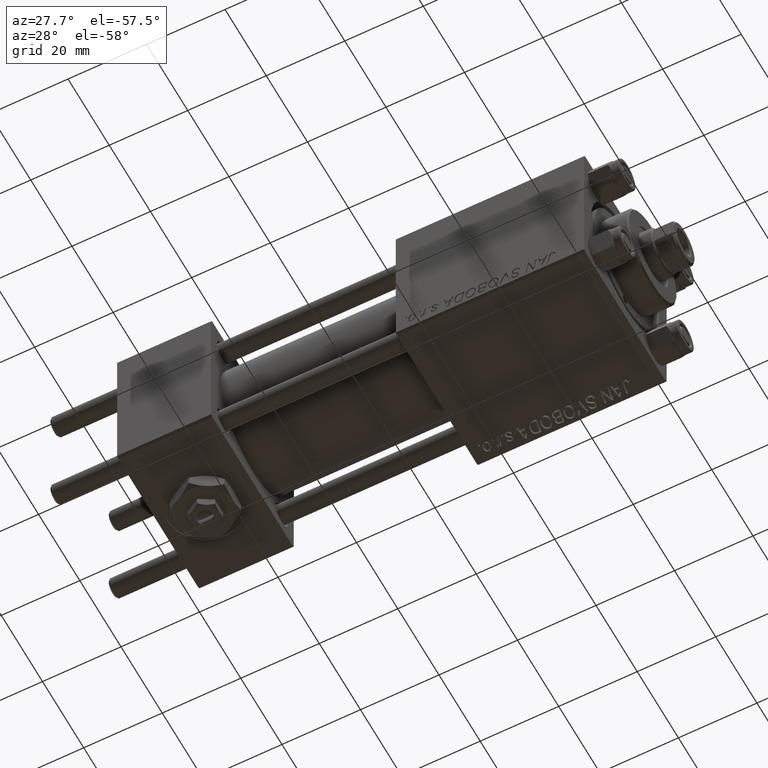
[diagram: clean part render]
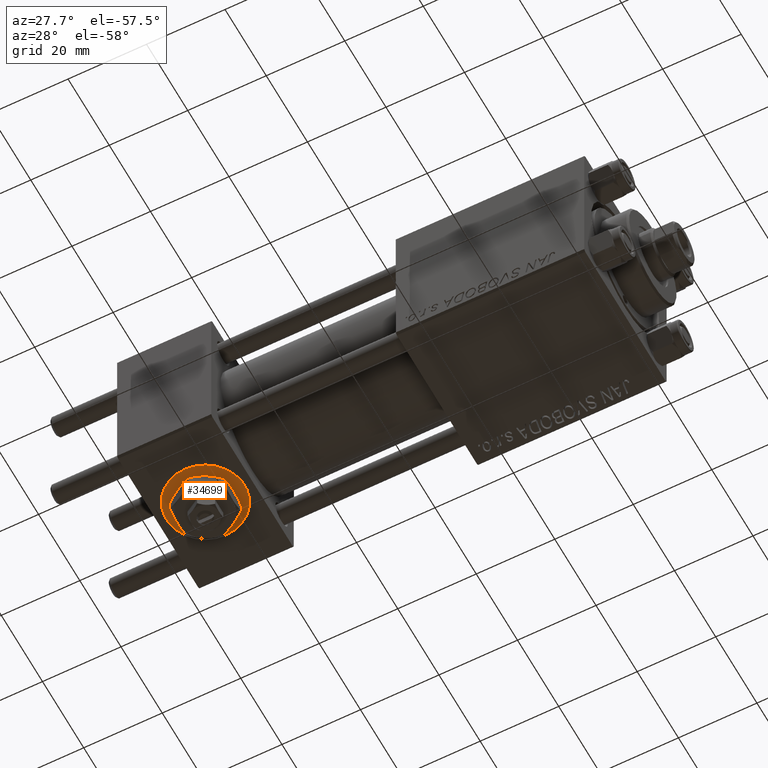
[diagram: same view with one face highlighted and labeled with its STEP entity id]
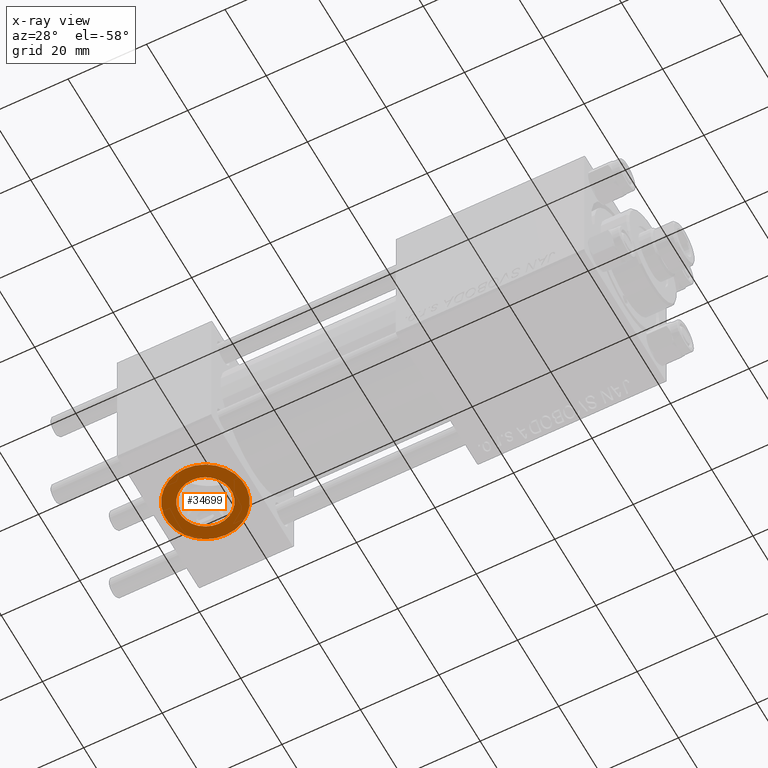
[diagram: x-ray of the same camera — body ghosted, the highlighted face saturated]
A machine part, auxiliary view. The second image highlights one B-rep face of the part: STEP entity #34699.
The next image is the same camera in x-ray: the body ghosted, the highlighted face saturated — about 0% of this face is hidden behind the body in this view.
In plain terms, the highlighted planar face has unit normal (0, -0, -1).
Its self-contained STEP definition (entity closure, byte-faithful):
#846 = CARTESIAN_POINT ( 'NONE',  ( 12.00000000000000000, -4.904328641410902191E-15, -19.80000000000000426 ) ) ;
#1161 = AXIS2_PLACEMENT_3D ( 'NONE', #35457, #22937, #30514 ) ;
#1389 = CARTESIAN_POINT ( 'NONE',  ( 12.00000000000000000, 9.999999999999996447, -19.80000000000000426 ) ) ;
#1778 = PLANE ( 'NONE',  #45301 ) ;
#1789 = VERTEX_POINT ( 'NONE', #5884 ) ;
#2133 = EDGE_CURVE ( 'NONE', #20537, #28776, #8807, .T. ) ;
#5884 = CARTESIAN_POINT ( 'NONE',  ( 12.00000000000000000, -6.580000000000006288, -19.80000000000000426 ) ) ;
#6414 = AXIS2_PLACEMENT_3D ( 'NONE', #17278, #12845, #13368 ) ;
#8807 = CIRCLE ( 'NONE', #35419, 10.00000000000000178 ) ;
#8846 = ORIENTED_EDGE ( 'NONE', *, *, #30630, .F. ) ;
#10670 = FACE_OUTER_BOUND ( 'NONE', #18435, .T. ) ;
#11228 = CARTESIAN_POINT ( 'NONE',  ( 12.00000000000000000, 6.579999999999994742, -19.80000000000000426 ) ) ;
#12845 = DIRECTION ( 'NONE',  ( 0.000000000000000000, -1.734723475976806848E-16, -1.000000000000000000 ) ) ;
#12855 = DIRECTION ( 'NONE',  ( 0.000000000000000000, 1.000000000000000000, 0.000000000000000000 ) ) ;
#13368 = DIRECTION ( 'NONE',  ( 0.000000000000000000, 1.000000000000000000, 0.000000000000000000 ) ) ;
#13494 = VERTEX_POINT ( 'NONE', #11228 ) ;
#13802 = CARTESIAN_POINT ( 'NONE',  ( 12.00000000000000000, -4.904328641410901403E-15, -19.80000000000000426 ) ) ;
#17278 = CARTESIAN_POINT ( 'NONE',  ( 12.00000000000000000, -4.904328641410902191E-15, -19.80000000000000426 ) ) ;
#17439 = ORIENTED_EDGE ( 'NONE', *, *, #45780, .F. ) ;
#18435 = EDGE_LOOP ( 'NONE', ( #24299, #19027 ) ) ;
#19027 = ORIENTED_EDGE ( 'NONE', *, *, #2133, .T. ) ;
#19163 = EDGE_LOOP ( 'NONE', ( #8846, #17439 ) ) ;
#20537 = VERTEX_POINT ( 'NONE', #22357 ) ;
#22357 = CARTESIAN_POINT ( 'NONE',  ( 12.00000000000000178, -10.00000000000000711, -19.80000000000000426 ) ) ;
#22937 = DIRECTION ( 'NONE',  ( 0.000000000000000000, -1.734723475976806848E-16, -1.000000000000000000 ) ) ;
#23651 = CIRCLE ( 'NONE', #1161, 10.00000000000000178 ) ;
#24299 = ORIENTED_EDGE ( 'NONE', *, *, #36187, .T. ) ;
#26415 = DIRECTION ( 'NONE',  ( 0.000000000000000000, -1.734723475976806848E-16, -1.000000000000000000 ) ) ;
#28776 = VERTEX_POINT ( 'NONE', #1389 ) ;
#30514 = DIRECTION ( 'NONE',  ( 0.000000000000000000, 1.000000000000000000, 0.000000000000000000 ) ) ;
#30630 = EDGE_CURVE ( 'NONE', #13494, #1789, #44794, .T. ) ;
#32677 = DIRECTION ( 'NONE',  ( 0.000000000000000000, -1.734723475976806848E-16, -1.000000000000000000 ) ) ;
#33875 = DIRECTION ( 'NONE',  ( 0.000000000000000000, -1.734723475976806848E-16, -1.000000000000000000 ) ) ;
#34699 = ADVANCED_FACE ( 'NONE', ( #46421, #10670 ), #1778, .T. ) ;
#35419 = AXIS2_PLACEMENT_3D ( 'NONE', #50198, #26415, #42352 ) ;
#35457 = CARTESIAN_POINT ( 'NONE',  ( 12.00000000000000000, -4.904328641410901403E-15, -19.80000000000000426 ) ) ;
#36187 = EDGE_CURVE ( 'NONE', #28776, #20537, #23651, .T. ) ;
#36379 = CIRCLE ( 'NONE', #48916, 6.580000000000000071 ) ;
#42352 = DIRECTION ( 'NONE',  ( 0.000000000000000000, 1.000000000000000000, 0.000000000000000000 ) ) ;
#42494 = DIRECTION ( 'NONE',  ( 0.000000000000000000, 1.000000000000000000, -1.734723475976806848E-16 ) ) ;
#44794 = CIRCLE ( 'NONE', #6414, 6.580000000000000071 ) ;
#45301 = AXIS2_PLACEMENT_3D ( 'NONE', #13802, #33875, #42494 ) ;
#45780 = EDGE_CURVE ( 'NONE', #1789, #13494, #36379, .T. ) ;
#46421 = FACE_BOUND ( 'NONE', #19163, .T. ) ;
#48916 = AXIS2_PLACEMENT_3D ( 'NONE', #846, #32677, #12855 ) ;
#50198 = CARTESIAN_POINT ( 'NONE',  ( 12.00000000000000000, -4.904328641410901403E-15, -19.80000000000000426 ) ) ;